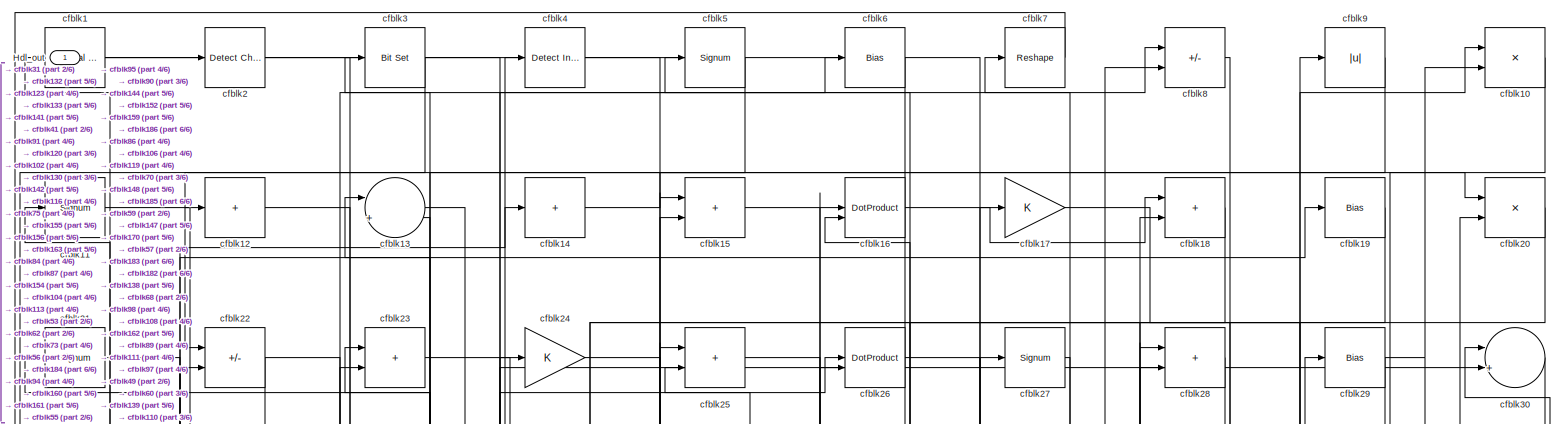
[diagram: root canvas - part 1/6, full width, top band]
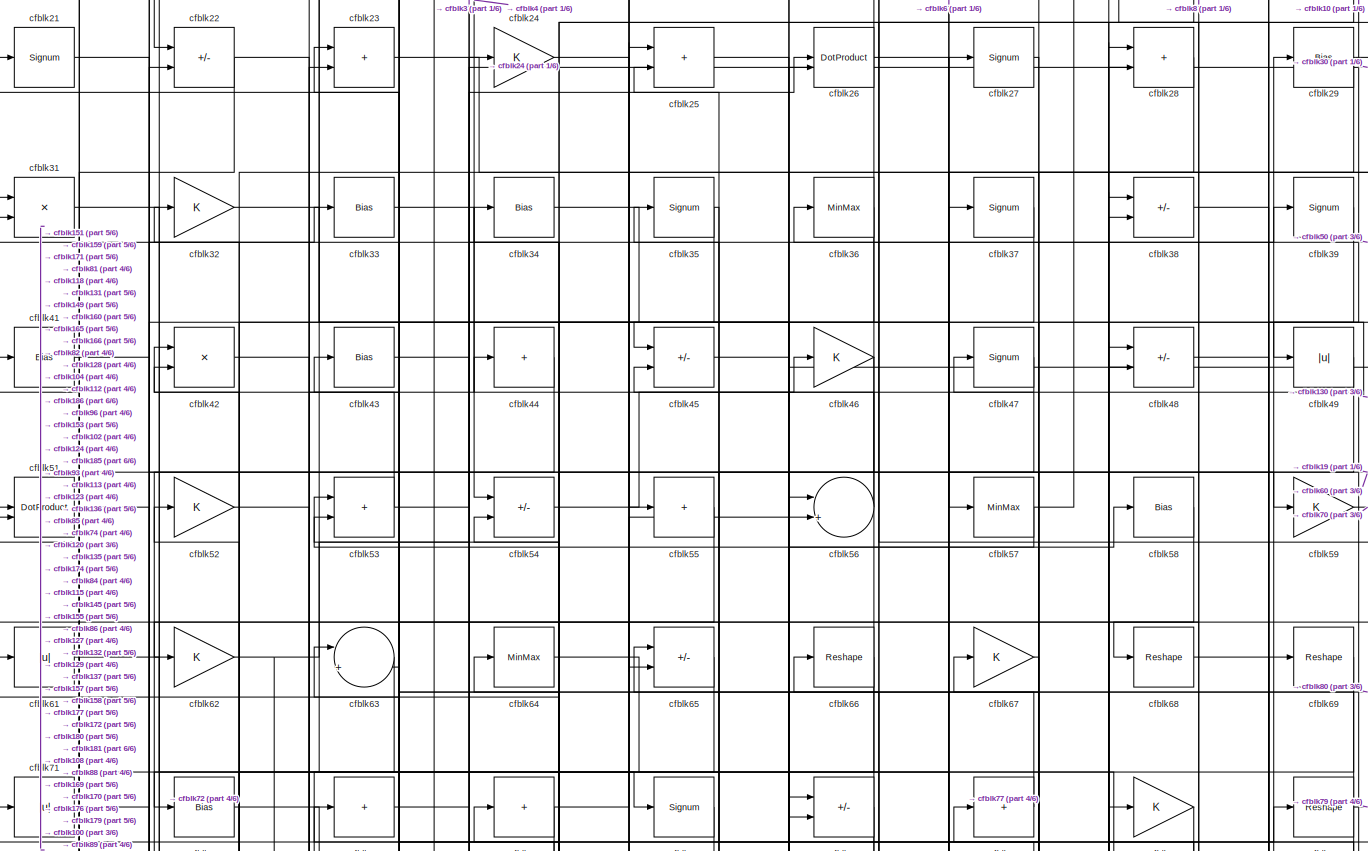
[diagram: root canvas - part 2/6, full width, top band]
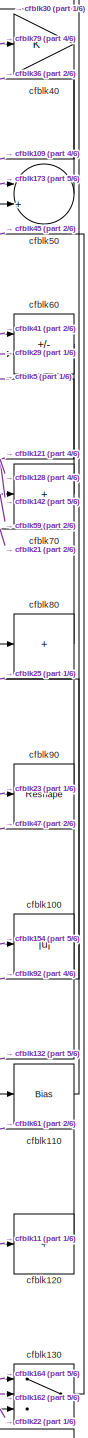
[diagram: root canvas - part 3/6, middle right region]
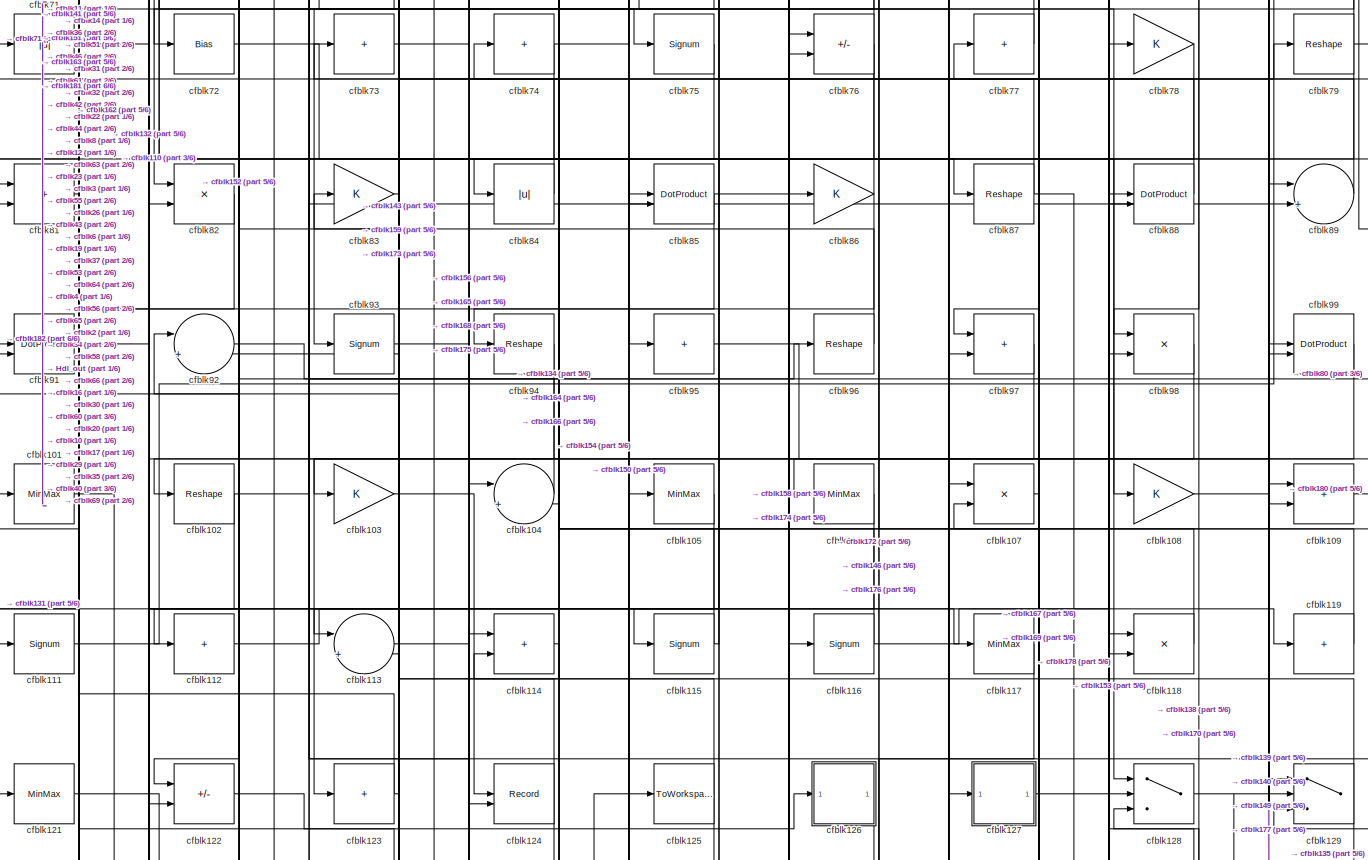
[diagram: root canvas - part 4/6, full width, middle band]
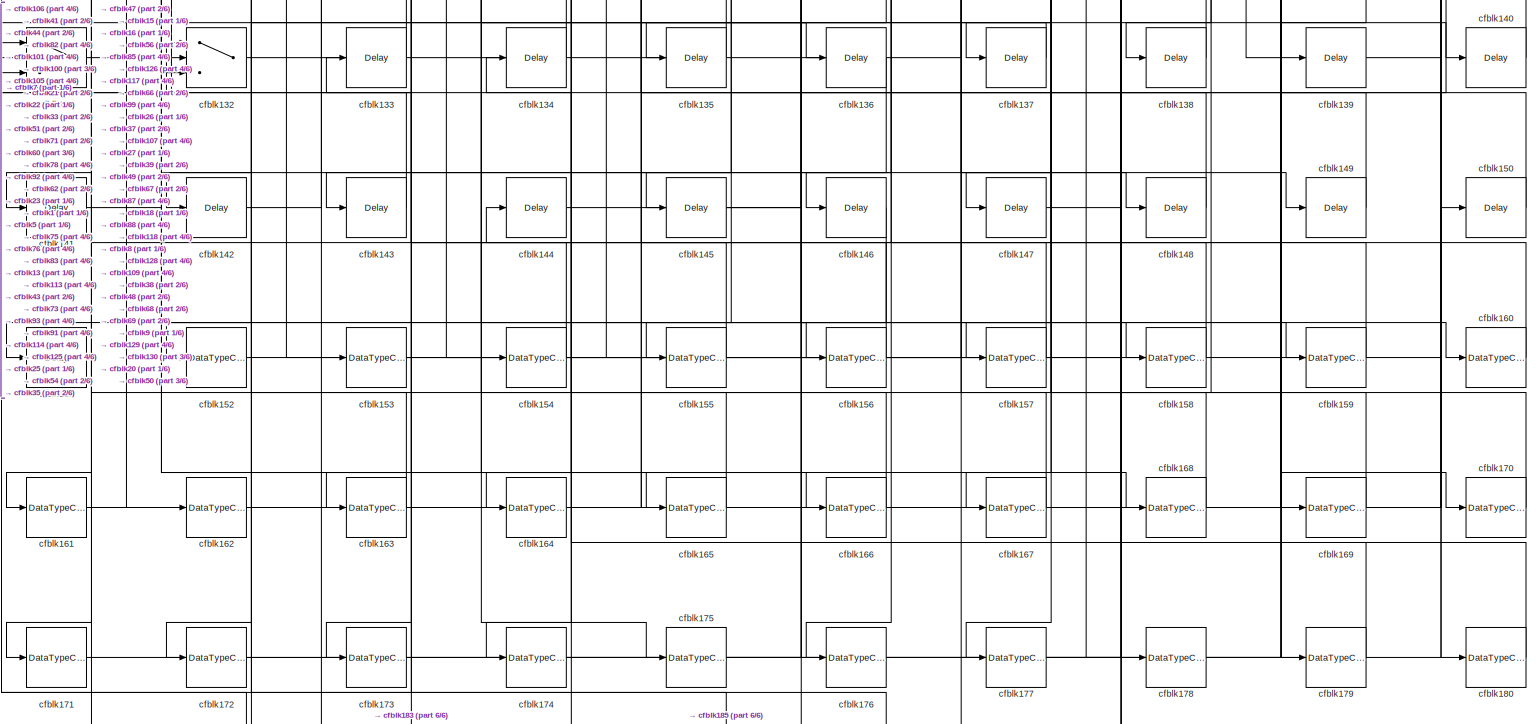
[diagram: root canvas - part 5/6, full width, bottom band]
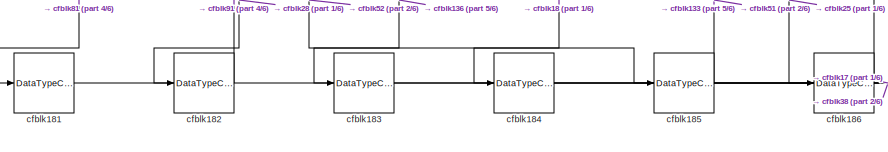
[diagram: root canvas - part 6/6, bottom left region]
MODEL slx_4f9d15bb8601
KIND model
CONFIG AbsTol = auto
CONFIG EnableMultiTasking = off
CONFIG FixedStep = auto
CONFIG MaxStep = auto
CONFIG MinStep = auto
CONFIG RelTol = 1e-3
CONFIG SampleTimeConstraint = Unconstrained
CONFIG SolverName = VariableStepAuto
CONFIG StartTime = 0.0
CONFIG StopTime = 10.0
BLOCK [Outport] Hdl_out
  OutDataTypeStr = uint8
BLOCK [Reference] cfblk1  REF=hdlsllib/Logic and Bit
Operations/Interval Test
  SourceBlock = hdlsllib/Logic and Bit\nOperations/Interval Test
  SourceType = Interval Test
BLOCK [Product] cfblk10
  Inputs = */
  OutDataTypeStr = uint8
  RndMeth = Zero
  SaturateOnIntegerOverflow = on
BLOCK [Abs] cfblk100
  OutDataTypeStr = uint8
  SaturateOnIntegerOverflow = off
BLOCK [MinMax] cfblk101
  OutDataTypeStr = uint8
BLOCK [Reshape] cfblk102
BLOCK [Gain] cfblk103
  OutDataTypeStr = uint8
BLOCK [Sum] cfblk104
  Inputs = |++
  OutDataTypeStr = uint8
BLOCK [MinMax] cfblk105
  OutDataTypeStr = uint8
BLOCK [MinMax] cfblk106
  OutDataTypeStr = uint8
BLOCK [Product] cfblk107
  Inputs = */
  OutDataTypeStr = uint8
  RndMeth = Zero
  SaturateOnIntegerOverflow = on
BLOCK [Gain] cfblk108
  OutDataTypeStr = uint8
BLOCK [Sum] cfblk109
  IconShape = rectangular
  OutDataTypeStr = uint8
BLOCK [Signum] cfblk11
BLOCK [Bias] cfblk110
  Bias = 0.0
  SaturateOnIntegerOverflow = off
BLOCK [Signum] cfblk111
BLOCK [Sum] cfblk112
  IconShape = rectangular
  Inputs = +
  OutDataTypeStr = uint8
BLOCK [Sum] cfblk113
  Inputs = |++
  OutDataTypeStr = uint8
BLOCK [Sum] cfblk114
  IconShape = rectangular
  OutDataTypeStr = uint8
BLOCK [Signum] cfblk115
BLOCK [Signum] cfblk116
BLOCK [MinMax] cfblk117
  OutDataTypeStr = uint8
BLOCK [Product] cfblk118
  Inputs = */
  OutDataTypeStr = uint8
  RndMeth = Zero
  SaturateOnIntegerOverflow = on
BLOCK [Sum] cfblk119
  IconShape = rectangular
  Inputs = +
  OutDataTypeStr = uint8
BLOCK [Sum] cfblk12
  IconShape = rectangular
  Inputs = +
  OutDataTypeStr = uint8
BLOCK [Sum] cfblk120
  IconShape = rectangular
  Inputs = +
  OutDataTypeStr = uint8
BLOCK [MinMax] cfblk121
  OutDataTypeStr = uint8
BLOCK [Sum] cfblk122
  IconShape = rectangular
  Inputs = +-
  OutDataTypeStr = uint8
BLOCK [Sum] cfblk123
  IconShape = rectangular
  Inputs = +
  OutDataTypeStr = uint8
BLOCK [Record] cfblk124
  CompatibilityTag = XY
  FileSettingsInternal = {"entries":[{"content":{"excelSettings":{"content":{},"type":"Streamout.ExcelSettings"}},"type":"Streamout.FileSettingStorage","uuid":""}],"packageUris":["http:\/\/schema.mathworks.com\/mf0\/streamout_blocks\/R2020a"],"version":"1.0"}
  Layout = [1 1]
  SignalsInternal = {"entries":[{"content":{"signals":[{"content":{"blockPath":[],"dimensions":[1],"domain":"","lineColor":"#a2142f","plots":[1],"port":1,"signalID":26040,"signalName":"cfblk103"},"type":"RecordBlkView.Signal","uuid":""},{"content":{"blockPath":[],"dimensions":[1],"domain":"","lineColor":"#139fff","plots":[1],"port":2,"signalID":26043,"signalName":"cfblk42"},"type":"RecordBlkView.Signal","uuid":""}]},...<+143ch>
  VisualizationBindings = {"xyplotplugin":{"info":[{"series":[{"bindingParametersList":[{"parameter":"X-Axis","signalID":26040,"signalName":"cfblk103"},{"parameter":"Y-Axis","signalID":26043,"signalName":"cfblk42"}],"seriesID":55295}],"subplotID":1}]}}
  st = -1
BLOCK [ToWorkspace] cfblk125
  MaxDataPoints = inf
  SampleTime = -1
  SaveFormat = Timeseries
  VariableName = simout
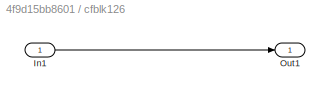
BLOCK [SubSystem] cfblk126
  LibrarySourceBlock = hdlsllib/Ports &\nSubsystems/Subsystem
BLOCK [Inport] cfblk126/In1
BLOCK [Outport] cfblk126/Out1
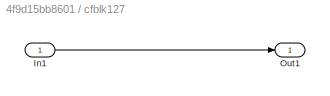
BLOCK [SubSystem] cfblk127
  LibrarySourceBlock = hdlsllib/Ports &\nSubsystems/Subsystem
BLOCK [Inport] cfblk127/In1
BLOCK [Outport] cfblk127/Out1
BLOCK [Switch] cfblk128
  InputSameDT = off
  OutDataTypeStr = uint8
  SaturateOnIntegerOverflow = off
BLOCK [Switch] cfblk129
  InputSameDT = off
  OutDataTypeStr = uint8
  SaturateOnIntegerOverflow = off
BLOCK [Sum] cfblk13
  Inputs = |++
  OutDataTypeStr = uint8
BLOCK [Switch] cfblk130
  InputSameDT = off
  OutDataTypeStr = uint8
  SaturateOnIntegerOverflow = off
BLOCK [Switch] cfblk131
  InputSameDT = off
  OutDataTypeStr = uint8
  SaturateOnIntegerOverflow = off
BLOCK [Switch] cfblk132
  InputSameDT = off
  OutDataTypeStr = uint8
  SaturateOnIntegerOverflow = off
BLOCK [Delay] cfblk133
  InputPortMap = u0
  SampleTime = 1
BLOCK [Delay] cfblk134
  InputPortMap = u0
  SampleTime = 1
BLOCK [Delay] cfblk135
  InputPortMap = u0
  SampleTime = 1
BLOCK [Delay] cfblk136
  InputPortMap = u0
  SampleTime = 1
BLOCK [Delay] cfblk137
  InputPortMap = u0
  SampleTime = 1
BLOCK [Delay] cfblk138
  InputPortMap = u0
  SampleTime = 1
BLOCK [Delay] cfblk139
  InputPortMap = u0
  SampleTime = 1
BLOCK [Sum] cfblk14
  IconShape = rectangular
  Inputs = +
  OutDataTypeStr = uint8
BLOCK [Delay] cfblk140
  InputPortMap = u0
  SampleTime = 1
BLOCK [Delay] cfblk141
  InputPortMap = u0
  SampleTime = 1
BLOCK [Delay] cfblk142
  InputPortMap = u0
  SampleTime = 1
BLOCK [Delay] cfblk143
  InputPortMap = u0
  SampleTime = 1
BLOCK [Delay] cfblk144
  InputPortMap = u0
  SampleTime = 1
BLOCK [Delay] cfblk145
  InputPortMap = u0
  SampleTime = 1
BLOCK [Delay] cfblk146
  InputPortMap = u0
  SampleTime = 1
BLOCK [Delay] cfblk147
  InputPortMap = u0
  SampleTime = 1
BLOCK [Delay] cfblk148
  InputPortMap = u0
  SampleTime = 1
BLOCK [Delay] cfblk149
  InputPortMap = u0
  SampleTime = 1
BLOCK [Sum] cfblk15
  IconShape = rectangular
  OutDataTypeStr = uint8
BLOCK [Delay] cfblk150
  InputPortMap = u0
  SampleTime = 1
BLOCK [Delay] cfblk151
  InputPortMap = u0
  SampleTime = 1
BLOCK [DataTypeConversion] cfblk152
  OutDataTypeStr = uint8
  RndMeth = Floor
  SaturateOnIntegerOverflow = off
BLOCK [DataTypeConversion] cfblk153
  OutDataTypeStr = uint8
  RndMeth = Floor
  SaturateOnIntegerOverflow = off
BLOCK [DataTypeConversion] cfblk154
  OutDataTypeStr = uint8
  RndMeth = Floor
  SaturateOnIntegerOverflow = off
BLOCK [DataTypeConversion] cfblk155
  OutDataTypeStr = uint8
  RndMeth = Floor
  SaturateOnIntegerOverflow = off
BLOCK [DataTypeConversion] cfblk156
  OutDataTypeStr = uint8
  RndMeth = Floor
  SaturateOnIntegerOverflow = off
BLOCK [DataTypeConversion] cfblk157
  OutDataTypeStr = uint8
  RndMeth = Floor
  SaturateOnIntegerOverflow = off
BLOCK [DataTypeConversion] cfblk158
  OutDataTypeStr = uint8
  RndMeth = Floor
  SaturateOnIntegerOverflow = off
BLOCK [DataTypeConversion] cfblk159
  OutDataTypeStr = uint8
  RndMeth = Floor
  SaturateOnIntegerOverflow = off
BLOCK [DotProduct] cfblk16
  OutDataTypeStr = uint8
BLOCK [DataTypeConversion] cfblk160
  OutDataTypeStr = uint8
  RndMeth = Floor
  SaturateOnIntegerOverflow = off
BLOCK [DataTypeConversion] cfblk161
  OutDataTypeStr = uint8
  RndMeth = Floor
  SaturateOnIntegerOverflow = off
BLOCK [DataTypeConversion] cfblk162
  OutDataTypeStr = uint8
  RndMeth = Floor
  SaturateOnIntegerOverflow = off
BLOCK [DataTypeConversion] cfblk163
  OutDataTypeStr = uint8
  RndMeth = Floor
  SaturateOnIntegerOverflow = off
BLOCK [DataTypeConversion] cfblk164
  OutDataTypeStr = uint8
  RndMeth = Floor
  SaturateOnIntegerOverflow = off
BLOCK [DataTypeConversion] cfblk165
  OutDataTypeStr = uint8
  RndMeth = Floor
  SaturateOnIntegerOverflow = off
BLOCK [DataTypeConversion] cfblk166
  OutDataTypeStr = uint8
  RndMeth = Floor
  SaturateOnIntegerOverflow = off
BLOCK [DataTypeConversion] cfblk167
  OutDataTypeStr = uint8
  RndMeth = Floor
  SaturateOnIntegerOverflow = off
BLOCK [DataTypeConversion] cfblk168
  OutDataTypeStr = uint8
  RndMeth = Floor
  SaturateOnIntegerOverflow = off
BLOCK [DataTypeConversion] cfblk169
  OutDataTypeStr = uint8
  RndMeth = Floor
  SaturateOnIntegerOverflow = off
BLOCK [Gain] cfblk17
  OutDataTypeStr = uint8
BLOCK [DataTypeConversion] cfblk170
  OutDataTypeStr = uint8
  RndMeth = Floor
  SaturateOnIntegerOverflow = off
BLOCK [DataTypeConversion] cfblk171
  OutDataTypeStr = uint8
  RndMeth = Floor
  SaturateOnIntegerOverflow = off
BLOCK [DataTypeConversion] cfblk172
  OutDataTypeStr = uint8
  RndMeth = Floor
  SaturateOnIntegerOverflow = off
BLOCK [DataTypeConversion] cfblk173
  OutDataTypeStr = uint8
  RndMeth = Floor
  SaturateOnIntegerOverflow = off
BLOCK [DataTypeConversion] cfblk174
  OutDataTypeStr = uint8
  RndMeth = Floor
  SaturateOnIntegerOverflow = off
BLOCK [DataTypeConversion] cfblk175
  OutDataTypeStr = uint8
  RndMeth = Floor
  SaturateOnIntegerOverflow = off
BLOCK [DataTypeConversion] cfblk176
  OutDataTypeStr = uint8
  RndMeth = Floor
  SaturateOnIntegerOverflow = off
BLOCK [DataTypeConversion] cfblk177
  OutDataTypeStr = uint8
  RndMeth = Floor
  SaturateOnIntegerOverflow = off
BLOCK [DataTypeConversion] cfblk178
  OutDataTypeStr = uint8
  RndMeth = Floor
  SaturateOnIntegerOverflow = off
BLOCK [DataTypeConversion] cfblk179
  OutDataTypeStr = uint8
  RndMeth = Floor
  SaturateOnIntegerOverflow = off
BLOCK [Sum] cfblk18
  IconShape = rectangular
  OutDataTypeStr = uint8
BLOCK [DataTypeConversion] cfblk180
  OutDataTypeStr = uint8
  RndMeth = Floor
  SaturateOnIntegerOverflow = off
BLOCK [DataTypeConversion] cfblk181
  OutDataTypeStr = uint8
  RndMeth = Floor
  SaturateOnIntegerOverflow = off
BLOCK [DataTypeConversion] cfblk182
  OutDataTypeStr = uint8
  RndMeth = Floor
  SaturateOnIntegerOverflow = off
BLOCK [DataTypeConversion] cfblk183
  OutDataTypeStr = uint8
  RndMeth = Floor
  SaturateOnIntegerOverflow = off
BLOCK [DataTypeConversion] cfblk184
  OutDataTypeStr = uint8
  RndMeth = Floor
  SaturateOnIntegerOverflow = off
BLOCK [DataTypeConversion] cfblk185
  OutDataTypeStr = uint8
  RndMeth = Floor
  SaturateOnIntegerOverflow = off
BLOCK [DataTypeConversion] cfblk186
  OutDataTypeStr = uint8
  RndMeth = Floor
  SaturateOnIntegerOverflow = off
BLOCK [Bias] cfblk19
  Bias = 0.0
  SaturateOnIntegerOverflow = off
BLOCK [Reference] cfblk2  REF=simulink/Logic and Bit
Operations/Detect
Change
  LibrarySourceBlock = hdlsllib/Logic and Bit\nOperations/Detect\nChange
  SourceBlock = simulink/Logic and Bit\nOperations/Detect\nChange
  SourceType = Detect Change
BLOCK [Product] cfblk20
  Inputs = */
  OutDataTypeStr = uint8
  RndMeth = Zero
  SaturateOnIntegerOverflow = on
BLOCK [Signum] cfblk21
BLOCK [Sum] cfblk22
  IconShape = rectangular
  Inputs = +-
  OutDataTypeStr = uint8
BLOCK [Sum] cfblk23
  IconShape = rectangular
  OutDataTypeStr = uint8
BLOCK [Gain] cfblk24
  OutDataTypeStr = uint8
BLOCK [Sum] cfblk25
  IconShape = rectangular
  OutDataTypeStr = uint8
BLOCK [DotProduct] cfblk26
  OutDataTypeStr = uint8
BLOCK [Signum] cfblk27
BLOCK [Sum] cfblk28
  IconShape = rectangular
  OutDataTypeStr = uint8
BLOCK [Bias] cfblk29
  Bias = 0.0
  SaturateOnIntegerOverflow = off
BLOCK [Reference] cfblk3  REF=simulink/Logic and Bit
Operations/Bit Set
  LibrarySourceBlock = hdlsllib/Logic and Bit\nOperations/Bit Set
  SourceBlock = simulink/Logic and Bit\nOperations/Bit Set
  SourceType = Bit Set
BLOCK [Sum] cfblk30
  Inputs = |++
  OutDataTypeStr = uint8
BLOCK [Product] cfblk31
  Inputs = */
  OutDataTypeStr = uint8
  RndMeth = Zero
  SaturateOnIntegerOverflow = on
BLOCK [Gain] cfblk32
  OutDataTypeStr = uint8
BLOCK [Bias] cfblk33
  Bias = 0.0
  SaturateOnIntegerOverflow = off
BLOCK [Bias] cfblk34
  Bias = 0.0
  SaturateOnIntegerOverflow = off
BLOCK [Signum] cfblk35
BLOCK [MinMax] cfblk36
  OutDataTypeStr = uint8
BLOCK [Signum] cfblk37
BLOCK [Sum] cfblk38
  IconShape = rectangular
  Inputs = +-
  OutDataTypeStr = uint8
BLOCK [Signum] cfblk39
BLOCK [Reference] cfblk4  REF=simulink/Logic and Bit
Operations/Detect
Increase
  LibrarySourceBlock = hdlsllib/Logic and Bit\nOperations/Detect\nIncrease
  SourceBlock = simulink/Logic and Bit\nOperations/Detect\nIncrease
  SourceType = Detect Increase
BLOCK [Gain] cfblk40
  OutDataTypeStr = uint8
BLOCK [Bias] cfblk41
  Bias = 0.0
  SaturateOnIntegerOverflow = off
BLOCK [Product] cfblk42
  Inputs = */
  OutDataTypeStr = uint8
  RndMeth = Zero
  SaturateOnIntegerOverflow = on
BLOCK [Bias] cfblk43
  Bias = 0.0
  SaturateOnIntegerOverflow = off
BLOCK [Sum] cfblk44
  IconShape = rectangular
  Inputs = +
  OutDataTypeStr = uint8
BLOCK [Sum] cfblk45
  IconShape = rectangular
  Inputs = +-
  OutDataTypeStr = uint8
BLOCK [Gain] cfblk46
  OutDataTypeStr = uint8
BLOCK [Signum] cfblk47
BLOCK [Sum] cfblk48
  IconShape = rectangular
  Inputs = +-
  OutDataTypeStr = uint8
BLOCK [Abs] cfblk49
  OutDataTypeStr = uint8
  SaturateOnIntegerOverflow = off
BLOCK [Signum] cfblk5
BLOCK [Sum] cfblk50
  Inputs = |++
  OutDataTypeStr = uint8
BLOCK [DotProduct] cfblk51
  OutDataTypeStr = uint8
BLOCK [Gain] cfblk52
  OutDataTypeStr = uint8
BLOCK [Sum] cfblk53
  IconShape = rectangular
  OutDataTypeStr = uint8
BLOCK [Sum] cfblk54
  IconShape = rectangular
  Inputs = +-
  OutDataTypeStr = uint8
BLOCK [Sum] cfblk55
  IconShape = rectangular
  Inputs = +
  OutDataTypeStr = uint8
BLOCK [Sum] cfblk56
  Inputs = |++
  OutDataTypeStr = uint8
BLOCK [MinMax] cfblk57
  OutDataTypeStr = uint8
BLOCK [Bias] cfblk58
  Bias = 0.0
  SaturateOnIntegerOverflow = off
BLOCK [Gain] cfblk59
  OutDataTypeStr = uint8
BLOCK [Bias] cfblk6
  Bias = 0.0
  SaturateOnIntegerOverflow = off
BLOCK [Sum] cfblk60
  IconShape = rectangular
  Inputs = +-
  OutDataTypeStr = uint8
BLOCK [Abs] cfblk61
  OutDataTypeStr = uint8
  SaturateOnIntegerOverflow = off
BLOCK [Gain] cfblk62
  OutDataTypeStr = uint8
BLOCK [Sum] cfblk63
  Inputs = |++
  OutDataTypeStr = uint8
BLOCK [MinMax] cfblk64
  OutDataTypeStr = uint8
BLOCK [Sum] cfblk65
  IconShape = rectangular
  Inputs = +-
  OutDataTypeStr = uint8
BLOCK [Reshape] cfblk66
BLOCK [Gain] cfblk67
  OutDataTypeStr = uint8
BLOCK [Reshape] cfblk68
BLOCK [Reshape] cfblk69
BLOCK [Reshape] cfblk7
BLOCK [Sum] cfblk70
  IconShape = rectangular
  Inputs = +
  OutDataTypeStr = uint8
BLOCK [Abs] cfblk71
  OutDataTypeStr = uint8
  SaturateOnIntegerOverflow = off
BLOCK [Bias] cfblk72
  Bias = 0.0
  SaturateOnIntegerOverflow = off
BLOCK [Sum] cfblk73
  IconShape = rectangular
  Inputs = +
  OutDataTypeStr = uint8
BLOCK [Sum] cfblk74
  IconShape = rectangular
  Inputs = +
  OutDataTypeStr = uint8
BLOCK [Signum] cfblk75
BLOCK [Sum] cfblk76
  IconShape = rectangular
  Inputs = +-
  OutDataTypeStr = uint8
BLOCK [Sum] cfblk77
  IconShape = rectangular
  Inputs = +
  OutDataTypeStr = uint8
BLOCK [Gain] cfblk78
  OutDataTypeStr = uint8
BLOCK [Reshape] cfblk79
BLOCK [Sum] cfblk8
  IconShape = rectangular
  Inputs = +-
  OutDataTypeStr = uint8
BLOCK [Sum] cfblk80
  IconShape = rectangular
  Inputs = +
  OutDataTypeStr = uint8
BLOCK [Sum] cfblk81
  IconShape = rectangular
  OutDataTypeStr = uint8
BLOCK [Product] cfblk82
  Inputs = */
  OutDataTypeStr = uint8
  RndMeth = Zero
  SaturateOnIntegerOverflow = on
BLOCK [Gain] cfblk83
  OutDataTypeStr = uint8
BLOCK [Abs] cfblk84
  OutDataTypeStr = uint8
  SaturateOnIntegerOverflow = off
BLOCK [DotProduct] cfblk85
  OutDataTypeStr = uint8
BLOCK [Gain] cfblk86
  OutDataTypeStr = uint8
BLOCK [Reshape] cfblk87
BLOCK [DotProduct] cfblk88
  OutDataTypeStr = uint8
BLOCK [Sum] cfblk89
  Inputs = |++
  OutDataTypeStr = uint8
BLOCK [Abs] cfblk9
  OutDataTypeStr = uint8
  SaturateOnIntegerOverflow = off
BLOCK [Reshape] cfblk90
BLOCK [DotProduct] cfblk91
  OutDataTypeStr = uint8
BLOCK [Sum] cfblk92
  Inputs = |++
  OutDataTypeStr = uint8
BLOCK [Signum] cfblk93
BLOCK [Reshape] cfblk94
BLOCK [Sum] cfblk95
  IconShape = rectangular
  Inputs = +
  OutDataTypeStr = uint8
BLOCK [Reshape] cfblk96
BLOCK [Sum] cfblk97
  IconShape = rectangular
  OutDataTypeStr = uint8
BLOCK [Product] cfblk98
  Inputs = */
  OutDataTypeStr = uint8
  RndMeth = Zero
  SaturateOnIntegerOverflow = on
BLOCK [DotProduct] cfblk99
  OutDataTypeStr = uint8
NET cfblk100:1 -> cfblk132:3, cfblk47:1
LINE cfblk101:1 -> cfblk162:1
NET cfblk102:1 -> cfblk122:2, cfblk44:1, cfblk8:1, cfblk96:1
LINE cfblk103:1 -> cfblk124:1
LINE cfblk104:1 -> cfblk42:1
LINE cfblk105:1 -> cfblk132:2
LINE cfblk106:1 -> cfblk131:3
LINE cfblk107:1 -> cfblk167:1
LINE cfblk108:1 -> cfblk10:1
LINE cfblk109:1 -> cfblk180:1
LINE cfblk10:1 -> cfblk49:1
LINE cfblk110:1 -> cfblk30:1
LINE cfblk111:1 -> cfblk29:1
NET cfblk112:1 -> cfblk117:1, cfblk89:2
NET cfblk113:1 -> cfblk156:1, cfblk6:1
LINE cfblk114:1 -> cfblk164:1
NET cfblk115:1 -> cfblk31:1, cfblk53:1, cfblk65:1
NET cfblk116:1 -> cfblk119:1, cfblk73:1
LINE cfblk117:1 -> cfblk146:1
LINE cfblk118:1 -> cfblk74:1
LINE cfblk119:1 -> cfblk16:2
LINE cfblk11:1 -> cfblk120:1
LINE cfblk120:1 -> cfblk61:1
LINE cfblk121:1 -> cfblk110:1
LINE cfblk122:1 -> cfblk126:1
NET cfblk123:1 -> cfblk11:1, cfblk63:1
LINE cfblk126/In1:1 -> cfblk126/Out1:1
LINE cfblk126:1 -> cfblk172:1
LINE cfblk127/In1:1 -> cfblk127/Out1:1
LINE cfblk127:1 -> cfblk79:1
NET cfblk128:1 -> cfblk139:1, cfblk140:1
NET cfblk129:1 -> cfblk135:1, cfblk34:1, cfblk63:2, cfblk77:1, cfblk92:2
LINE cfblk12:1 -> cfblk75:1
LINE cfblk130:1 -> cfblk45:1
LINE cfblk131:1 -> cfblk33:1
LINE cfblk132:1 -> cfblk37:1
LINE cfblk133:1 -> cfblk1:1
LINE cfblk134:1 -> cfblk91:2
LINE cfblk135:1 -> cfblk54:2
LINE cfblk136:1 -> cfblk183:1
LINE cfblk137:1 -> cfblk131:2
LINE cfblk138:1 -> cfblk118:1
LINE cfblk139:1 -> cfblk20:2
LINE cfblk13:1 -> cfblk154:1
LINE cfblk140:1 -> cfblk129:3
LINE cfblk141:1 -> cfblk22:2
LINE cfblk142:1 -> cfblk23:2
LINE cfblk143:1 -> cfblk131:1
LINE cfblk144:1 -> cfblk16:1
LINE cfblk145:1 -> cfblk56:1
LINE cfblk146:1 -> cfblk161:1
LINE cfblk147:1 -> cfblk18:2
LINE cfblk148:1 -> cfblk25:1
LINE cfblk149:1 -> cfblk129:2
LINE cfblk14:1 -> cfblk20:1
LINE cfblk150:1 -> cfblk85:1
LINE cfblk151:1 -> cfblk51:2
NET cfblk152:1 -> cfblk26:2, cfblk27:1
LINE cfblk153:1 -> cfblk78:1
NET cfblk154:1 -> cfblk100:1, cfblk125:1, cfblk144:1
LINE cfblk155:1 -> cfblk13:1
LINE cfblk156:1 -> cfblk13:2
LINE cfblk157:1 -> cfblk66:1
LINE cfblk158:1 -> cfblk67:1
NET cfblk159:1 -> cfblk41:1, cfblk83:1
LINE cfblk15:1 -> cfblk159:1
LINE cfblk160:1 -> cfblk15:1
LINE cfblk161:1 -> cfblk15:2
NET cfblk162:1 -> cfblk105:1, cfblk130:2, cfblk9:1
LINE cfblk163:1 -> cfblk101:1
NET cfblk164:1 -> cfblk109:1, cfblk130:1, cfblk88:1, cfblk88:2
LINE cfblk165:1 -> cfblk114:1
LINE cfblk166:1 -> cfblk114:2
NET cfblk167:1 -> cfblk150:1, cfblk92:1
LINE cfblk168:1 -> cfblk107:1
LINE cfblk169:1 -> cfblk107:2
LINE cfblk16:1 -> cfblk18:1
NET cfblk170:1 -> cfblk128:3, cfblk7:1
LINE cfblk171:1 -> cfblk48:1
LINE cfblk172:1 -> cfblk48:2
LINE cfblk173:1 -> cfblk50:1
LINE cfblk174:1 -> cfblk76:1
LINE cfblk175:1 -> cfblk76:2
LINE cfblk176:1 -> cfblk69:1
LINE cfblk177:1 -> cfblk99:1
LINE cfblk178:1 -> cfblk99:2
LINE cfblk179:1 -> cfblk134:1
LINE cfblk17:1 -> cfblk89:1
LINE cfblk180:1 -> cfblk38:1
LINE cfblk181:1 -> cfblk38:2
LINE cfblk182:1 -> cfblk91:1
LINE cfblk183:1 -> cfblk28:1
LINE cfblk184:1 -> cfblk28:2
NET cfblk185:1 -> cfblk133:1, cfblk17:1, cfblk51:1
LINE cfblk186:1 -> cfblk52:1
LINE cfblk18:1 -> cfblk184:1
LINE cfblk19:1 -> cfblk94:1
LINE cfblk1:1 -> cfblk2:1
NET cfblk20:1 -> cfblk106:1, cfblk98:1, cfblk98:2
NET cfblk21:1 -> cfblk149:1, cfblk165:1
NET cfblk22:1 -> cfblk111:1, cfblk130:3
LINE cfblk23:1 -> cfblk90:1
LINE cfblk24:1 -> cfblk55:1
LINE cfblk25:1 -> cfblk186:1
LINE cfblk26:1 -> cfblk148:1
LINE cfblk27:1 -> cfblk147:1
LINE cfblk28:1 -> cfblk182:1
NET cfblk29:1 -> cfblk10:2, cfblk60:2, cfblk97:1
LINE cfblk2:1 -> cfblk116:1
LINE cfblk30:1 -> cfblk97:2
LINE cfblk31:1 -> cfblk128:1
LINE cfblk32:1 -> cfblk57:1
LINE cfblk33:1 -> cfblk54:1
LINE cfblk34:1 -> cfblk86:1
NET cfblk35:1 -> cfblk155:1, cfblk62:1
LINE cfblk36:1 -> cfblk82:2
LINE cfblk37:1 -> cfblk84:1
LINE cfblk38:1 -> cfblk179:1
LINE cfblk39:1 -> cfblk137:1
NET cfblk3:1 -> cfblk104:1, cfblk31:2
LINE cfblk40:1 -> cfblk109:2
NET cfblk41:1 -> cfblk19:1, cfblk60:1
LINE cfblk42:1 -> cfblk124:2
NET cfblk43:1 -> cfblk136:1, cfblk85:2
LINE cfblk44:1 -> cfblk171:1
LINE cfblk45:1 -> cfblk50:2
LINE cfblk46:1 -> cfblk72:1
NET cfblk47:1 -> cfblk145:1, cfblk45:2
LINE cfblk48:1 -> cfblk170:1
NET cfblk49:1 -> cfblk174:1, cfblk177:1
LINE cfblk4:1 -> cfblk95:1
LINE cfblk50:1 -> cfblk36:1
NET cfblk51:1 -> cfblk118:2, cfblk166:1
LINE cfblk52:1 -> cfblk185:1
NET cfblk53:1 -> cfblk30:2, cfblk39:1, cfblk42:2
LINE cfblk54:1 -> cfblk46:1
NET cfblk55:1 -> cfblk113:1, cfblk65:2
LINE cfblk56:1 -> cfblk4:1
NET cfblk57:1 -> cfblk53:2, cfblk8:2
LINE cfblk58:1 -> cfblk102:1
LINE cfblk59:1 -> cfblk70:1
LINE cfblk5:1 -> cfblk163:1
NET cfblk60:1 -> cfblk121:1, cfblk128:2, cfblk142:1
LINE cfblk61:1 -> cfblk127:1
NET cfblk62:1 -> cfblk153:1, cfblk24:1
LINE cfblk63:1 -> cfblk93:1
LINE cfblk64:1 -> cfblk108:1
LINE cfblk65:1 -> cfblk112:1
LINE cfblk66:1 -> cfblk82:1
LINE cfblk67:1 -> cfblk157:1
LINE cfblk68:1 -> cfblk169:1
LINE cfblk69:1 -> cfblk81:1
LINE cfblk6:1 -> cfblk59:1
LINE cfblk70:1 -> cfblk5:1
LINE cfblk71:1 -> cfblk160:1
LINE cfblk72:1 -> cfblk87:1
NET cfblk73:1 -> cfblk168:1, cfblk26:1
NET cfblk74:1 -> cfblk56:2, cfblk81:2
LINE cfblk75:1 -> cfblk143:1
LINE cfblk76:1 -> cfblk173:1
LINE cfblk77:1 -> cfblk43:1
LINE cfblk78:1 -> cfblk152:1
NET cfblk79:1 -> cfblk115:1, cfblk35:1, cfblk40:1
LINE cfblk7:1 -> cfblk132:1
LINE cfblk80:1 -> cfblk21:1
LINE cfblk81:1 -> cfblk181:1
LINE cfblk82:1 -> cfblk141:1
LINE cfblk83:1 -> cfblk113:2
LINE cfblk84:1 -> cfblk3:1
NET cfblk85:1 -> cfblk151:1, cfblk158:1, cfblk58:1
NET cfblk86:1 -> Hdl_out:1, cfblk104:2
NET cfblk87:1 -> cfblk178:1, cfblk23:1
LINE cfblk88:1 -> cfblk71:1
LINE cfblk89:1 -> cfblk64:1
NET cfblk8:1 -> cfblk138:1, cfblk68:1
LINE cfblk90:1 -> cfblk25:2
LINE cfblk91:1 -> cfblk14:1
LINE cfblk92:1 -> cfblk80:1
LINE cfblk93:1 -> cfblk175:1
LINE cfblk94:1 -> cfblk123:1
LINE cfblk95:1 -> cfblk129:1
LINE cfblk96:1 -> cfblk32:1
LINE cfblk97:1 -> cfblk103:1
LINE cfblk98:1 -> cfblk122:1
LINE cfblk99:1 -> cfblk176:1
NET cfblk9:1 -> cfblk12:1, cfblk22:1
note: NET lines group one-source signal fan-out (src -> all destinations, sorted); 1:1 wires keep LINE
